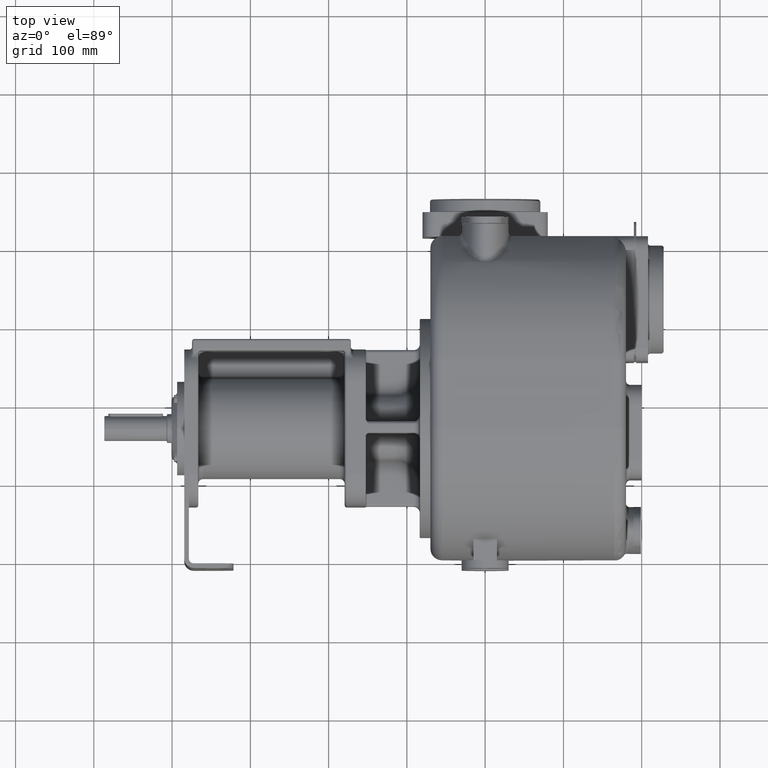
[diagram: clean part render]
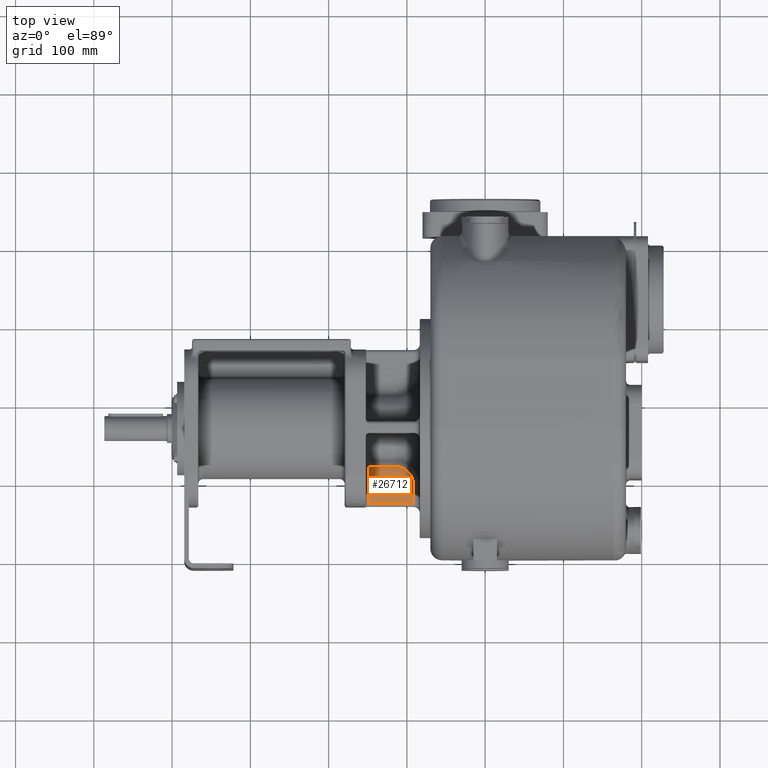
[diagram: same view with one face highlighted and labeled with its STEP entity id]
A machine part, top view. The second image highlights one B-rep face of the part: STEP entity #26712.
In plain terms, the highlighted planar face has unit normal (0, 0, 1).
Its self-contained STEP definition (entity closure, byte-faithful):
#10914=DIRECTION('',(0.E0,-1.E0,0.E0));
#10915=VECTOR('',#10914,4.712515984669E1);
#10916=CARTESIAN_POINT('',(-1.485E2,1.211251598467E2,1.25E1));
#10917=LINE('',#10916,#10915);
#10918=DIRECTION('',(-1.E0,-3.272150804280E-12,0.E0));
#10919=VECTOR('',#10918,3.5E1);
#10920=CARTESIAN_POINT('',(-1.135E2,1.211251598468E2,1.25E1));
#10921=LINE('',#10920,#10919);
#10922=CARTESIAN_POINT('',(-9.15E1,9.785604668442E1,1.25E1));
#10923=CARTESIAN_POINT('',(-9.150000239488E1,9.809178596160E1,1.25E1));
#10924=CARTESIAN_POINT('',(-9.150702021576E1,9.856361331575E1,1.25E1));
#10925=CARTESIAN_POINT('',(-9.153866840514E1,9.927281741791E1,1.25E1));
#10926=CARTESIAN_POINT('',(-9.159150843567E1,9.998223457916E1,1.25E1));
#10927=CARTESIAN_POINT('',(-9.166558780094E1,1.006910462242E2,1.25E1));
#10928=CARTESIAN_POINT('',(-9.176087194084E1,1.013983699278E2,1.25E1));
#10929=CARTESIAN_POINT('',(-9.187729288957E1,1.021033628674E2,1.25E1));
#10930=CARTESIAN_POINT('',(-9.201475650639E1,1.028051545290E2,1.25E1));
#10931=CARTESIAN_POINT('',(-9.217312554998E1,1.035029779448E2,1.25E1));
#10932=CARTESIAN_POINT('',(-9.235225004600E1,1.041961310277E2,1.25E1));
#10933=CARTESIAN_POINT('',(-9.255197970810E1,1.048839042989E2,1.25E1));
#10934=CARTESIAN_POINT('',(-9.277211490229E1,1.055655610092E2,1.25E1));
#10935=CARTESIAN_POINT('',(-9.301238912302E1,1.062403117763E2,1.25E1));
#10936=CARTESIAN_POINT('',(-9.327252846034E1,1.069073838972E2,1.25E1));
#10937=CARTESIAN_POINT('',(-9.355222476062E1,1.075660156807E2,1.25E1));
#10938=CARTESIAN_POINT('',(-9.385112011342E1,1.082154730231E2,1.25E1));
#10939=CARTESIAN_POINT('',(-9.416884575693E1,1.088550299651E2,1.25E1));
#10940=CARTESIAN_POINT('',(-9.450501292082E1,1.094839740842E2,1.25E1));
#10941=CARTESIAN_POINT('',(-9.485916633533E1,1.101015994228E2,1.25E1));
#10942=CARTESIAN_POINT('',(-9.523083562045E1,1.107072159126E2,1.25E1));
#10943=CARTESIAN_POINT('',(-9.561953798453E1,1.113001499858E2,1.25E1));
#10944=CARTESIAN_POINT('',(-9.602473765313E1,1.118797582406E2,1.25E1));
#10945=CARTESIAN_POINT('',(-9.644587941670E1,1.124454195992E2,1.25E1));
#10946=CARTESIAN_POINT('',(-9.688240221543E1,1.129965300265E2,1.25E1));
#10947=CARTESIAN_POINT('',(-9.733370942913E1,1.135325269992E2,1.25E1));
#10948=CARTESIAN_POINT('',(-9.779918352559E1,1.140528821662E2,1.25E1));
#10949=CARTESIAN_POINT('',(-9.827820660989E1,1.145570828039E2,1.25E1));
#10950=CARTESIAN_POINT('',(-9.877014403123E1,1.150446585722E2,1.25E1));
#10951=CARTESIAN_POINT('',(-9.927434418247E1,1.155151898405E2,1.25E1));
#10952=CARTESIAN_POINT('',(-9.979015990390E1,1.159682707207E2,1.25E1));
#10953=CARTESIAN_POINT('',(-1.003169433565E2,1.164035279646E2,1.25E1));
#10954=CARTESIAN_POINT('',(-1.008540420425E2,1.168206581247E2,1.25E1));
#10955=CARTESIAN_POINT('',(-1.014008125664E2,1.172193706244E2,1.25E1));
#10956=CARTESIAN_POINT('',(-1.019566213491E2,1.175993905932E2,1.25E1));
#10957=CARTESIAN_POINT('',(-1.025208333260E2,1.179605133494E2,1.25E1));
#10958=CARTESIAN_POINT('',(-1.030928268087E2,1.183025542957E2,1.25E1));
#10959=CARTESIAN_POINT('',(-1.036719896807E2,1.186253268348E2,1.25E1));
#10960=CARTESIAN_POINT('',(-1.042577576269E2,1.189287235561E2,1.25E1));
#10961=CARTESIAN_POINT('',(-1.048495967424E2,1.192126762720E2,1.25E1));
#10962=CARTESIAN_POINT('',(-1.054469977662E2,1.194771020289E2,1.25E1));
#10963=CARTESIAN_POINT('',(-1.060494447480E2,1.197219293161E2,1.25E1));
#10964=CARTESIAN_POINT('',(-1.066563808223E2,1.199471232159E2,1.25E1));
#10965=CARTESIAN_POINT('',(-1.072672748416E2,1.201526403620E2,1.25E1));
#10966=CARTESIAN_POINT('',(-1.078816191261E2,1.203384371837E2,1.25E1));
#10967=CARTESIAN_POINT('',(-1.084990907856E2,1.205045877491E2,1.25E1));
#10968=CARTESIAN_POINT('',(-1.091193697690E2,1.206511345283E2,1.25E1));
#10969=CARTESIAN_POINT('',(-1.097422039258E2,1.207780831731E2,1.25E1));
#10970=CARTESIAN_POINT('',(-1.103670687835E2,1.208854108591E2,1.25E1));
#10971=CARTESIAN_POINT('',(-1.109933331653E2,1.209731200278E2,1.25E1));
#10972=CARTESIAN_POINT('',(-1.116204097515E2,1.210412092163E2,1.25E1));
#10973=CARTESIAN_POINT('',(-1.122476755730E2,1.210897057071E2,1.25E1));
#10974=CARTESIAN_POINT('',(-1.128745484033E2,1.211187246381E2,1.25E1));
#10975=CARTESIAN_POINT('',(-1.132916239829E2,1.211251567225E2,1.25E1));
#10976=CARTESIAN_POINT('',(-1.135E2,1.211251598468E2,1.25E1));
#10978=DIRECTION('',(0.E0,1.E0,0.E0));
#10979=VECTOR('',#10978,2.385604668441E1);
#10980=CARTESIAN_POINT('',(-9.15E1,7.400000000001E1,1.25E1));
#10981=LINE('',#10980,#10979);
#10982=DIRECTION('',(-1.E0,-2.353516991430E-13,0.E0));
#10983=VECTOR('',#10982,5.7E1);
#10984=CARTESIAN_POINT('',(-9.15E1,7.400000000001E1,1.25E1));
#10985=LINE('',#10984,#10983);
#11918=CARTESIAN_POINT('',(-1.485E2,7.4E1,1.25E1));
#11920=VERTEX_POINT('',#11918);
#11948=CARTESIAN_POINT('',(-1.485E2,1.211251598467E2,1.25E1));
#11949=VERTEX_POINT('',#11948);
#11962=CARTESIAN_POINT('',(-9.15E1,7.4E1,1.25E1));
#11964=VERTEX_POINT('',#11962);
#12016=VERTEX_POINT('',#10922);
#12017=VERTEX_POINT('',#10976);
#26697=CARTESIAN_POINT('',(-1.525E2,1.267709588355E2,1.25E1));
#26698=DIRECTION('',(0.E0,0.E0,1.E0));
#26699=DIRECTION('',(0.E0,-1.E0,0.E0));
#26700=AXIS2_PLACEMENT_3D('',#26697,#26698,#26699);
#26701=PLANE('',#26700);
#26703=ORIENTED_EDGE('',*,*,#26702,.F.);
#26705=ORIENTED_EDGE('',*,*,#26704,.F.);
#26706=ORIENTED_EDGE('',*,*,#26676,.F.);
#26707=ORIENTED_EDGE('',*,*,#26688,.F.);
#26709=ORIENTED_EDGE('',*,*,#26708,.T.);
#26710=EDGE_LOOP('',(#26703,#26705,#26706,#26707,#26709));
#26711=FACE_OUTER_BOUND('',#26710,.F.);
#26712=ADVANCED_FACE('',(#26711),#26701,.T.);
#10977=B_SPLINE_CURVE_WITH_KNOTS('',3,(#10922,#10923,#10924,#10925,#10926,
#10927,#10928,#10929,#10930,#10931,#10932,#10933,#10934,#10935,#10936,#10937,
#10938,#10939,#10940,#10941,#10942,#10943,#10944,#10945,#10946,#10947,#10948,
#10949,#10950,#10951,#10952,#10953,#10954,#10955,#10956,#10957,#10958,#10959,
#10960,#10961,#10962,#10963,#10964,#10965,#10966,#10967,#10968,#10969,#10970,
#10971,#10972,#10973,#10974,#10975,#10976),.UNSPECIFIED.,.F.,.F.,(4,1,1,1,1,1,1,
1,1,1,1,1,1,1,1,1,1,1,1,1,1,1,1,1,1,1,1,1,1,1,1,1,1,1,1,1,1,1,1,1,1,1,1,1,1,1,1,
1,1,1,1,1,4),(0.E0,1.923076923077E-2,3.846153846154E-2,5.769230769231E-2,
7.692307692308E-2,9.615384615385E-2,1.153846153846E-1,1.346153846154E-1,
1.538461538462E-1,1.730769230769E-1,1.923076923077E-1,2.115384615385E-1,
2.307692307692E-1,2.5E-1,2.692307692308E-1,2.884615384615E-1,3.076923076923E-1,
3.269230769231E-1,3.461538461538E-1,3.653846153846E-1,3.846153846154E-1,
4.038461538462E-1,4.230769230769E-1,4.423076923077E-1,4.615384615385E-1,
4.807692307692E-1,5.E-1,5.192307692308E-1,5.384615384615E-1,5.576923076923E-1,
5.769230769231E-1,5.961538461538E-1,6.153846153846E-1,6.346153846154E-1,
6.538461538462E-1,6.730769230769E-1,6.923076923077E-1,7.115384615385E-1,
7.307692307692E-1,7.5E-1,7.692307692308E-1,7.884615384615E-1,8.076923076923E-1,
8.269230769231E-1,8.461538461538E-1,8.653846153846E-1,8.846153846154E-1,
9.038461538462E-1,9.230769230769E-1,9.423076923077E-1,9.615384615385E-1,
9.807692307692E-1,1.E0),.UNSPECIFIED.);
#26676=EDGE_CURVE('',#12016,#12017,#10977,.T.);
#26688=EDGE_CURVE('',#11964,#12016,#10981,.T.);
#26702=EDGE_CURVE('',#11949,#11920,#10917,.T.);
#26704=EDGE_CURVE('',#12017,#11949,#10921,.T.);
#26708=EDGE_CURVE('',#11964,#11920,#10985,.T.);